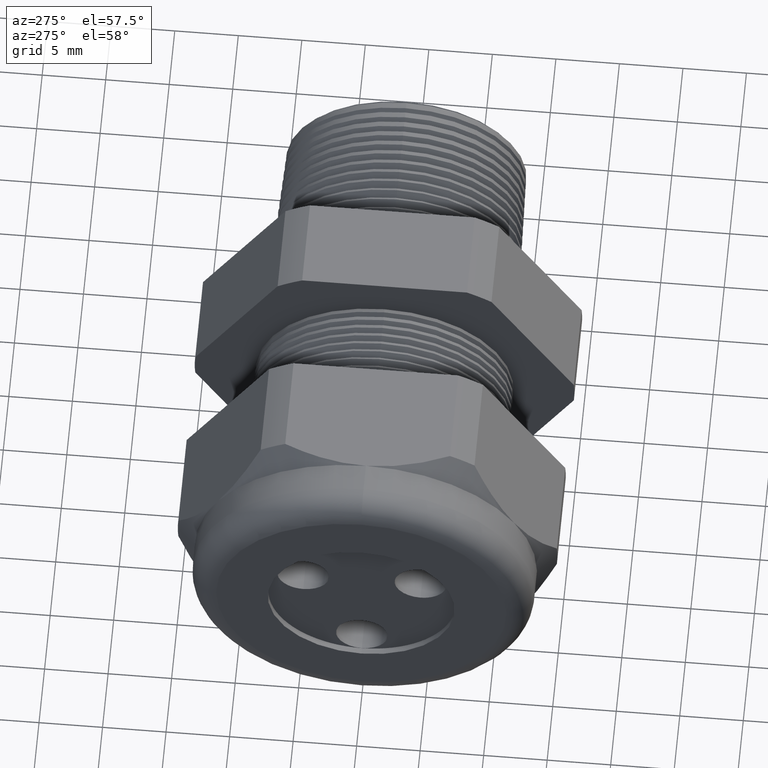
[diagram: clean part render]
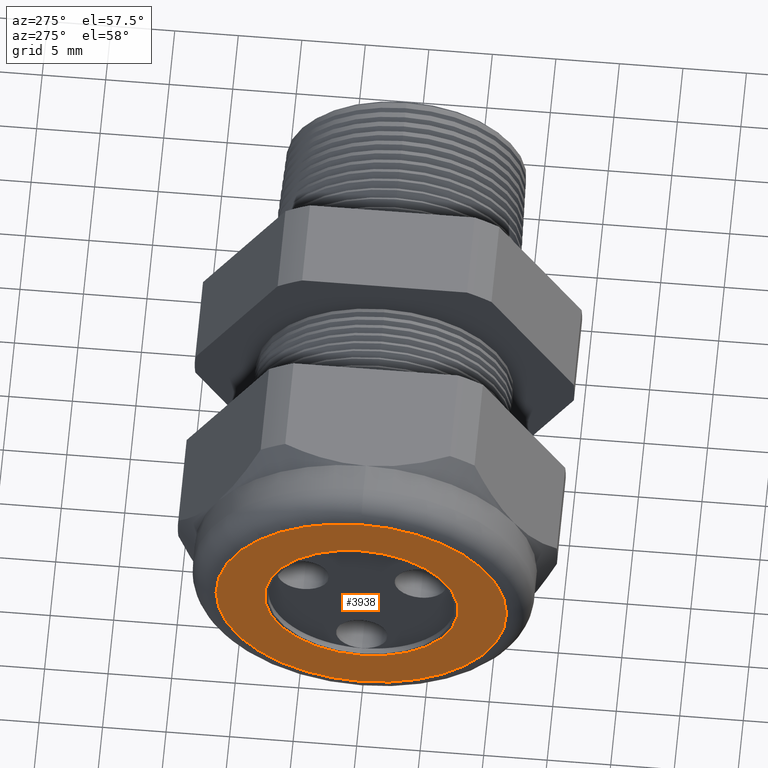
[diagram: same view with one face highlighted and labeled with its STEP entity id]
A machine part, auxiliary view. The second image highlights one B-rep face of the part: STEP entity #3938.
In plain terms, the highlighted planar face has unit normal (-1, 0, 0).
Its self-contained STEP definition (entity closure, byte-faithful):
#1921 = DIRECTION ( 'NONE',  ( 0.0000000000000000000, 0.0000000000000000000, -1.000000000000000000 ) ) ;
#1922 = DIRECTION ( 'NONE',  ( 1.000000000000000000, 0.0000000000000000000, 0.0000000000000000000 ) ) ;
#1923 = CARTESIAN_POINT ( 'NONE',  ( -1.409999999999999900, 0.0000000000000000000, 0.0000000000000000000 ) ) ;
#1924 = AXIS2_PLACEMENT_3D ( 'NONE', #1923, #1922, #1921 ) ;
#1925 = CIRCLE ( 'NONE', #1924, 0.2999999999999999900 ) ;
#1948 = DIRECTION ( 'NONE',  ( -1.000000000000000000, 0.0000000000000000000, 0.0000000000000000000 ) ) ;
#1949 = CARTESIAN_POINT ( 'NONE',  ( -1.409999999999999900, 0.0000000000000000000, 0.0000000000000000000 ) ) ;
#1950 = AXIS2_PLACEMENT_3D ( 'NONE', #1949, #1948, #2012 ) ;
#1951 = CIRCLE ( 'NONE', #1950, 0.4500000000000001200 ) ;
#1957 = DIRECTION ( 'NONE',  ( 0.0000000000000000000, 0.0000000000000000000, 1.000000000000000000 ) ) ;
#1958 = DIRECTION ( 'NONE',  ( -1.000000000000000000, 0.0000000000000000000, 0.0000000000000000000 ) ) ;
#1960 = CARTESIAN_POINT ( 'NONE',  ( -1.409999999999999900, 0.5300000000000000300, 0.0000000000000000000 ) ) ;
#1969 = AXIS2_PLACEMENT_3D ( 'NONE', #1960, #1958, #1957 ) ;
#1970 = PLANE ( 'NONE',  #1969 ) ;
#1972 = FACE_BOUND ( 'NONE', #3943, .T. ) ;
#1973 = FACE_OUTER_BOUND ( 'NONE', #3948, .T. ) ;
#2012 = DIRECTION ( 'NONE',  ( 0.0000000000000000000, 0.0000000000000000000, 1.000000000000000000 ) ) ;
#3010 = CARTESIAN_POINT ( 'NONE',  ( -1.409999999999999900, 6.000769315822032200E-017, -0.4500000000000001200 ) ) ;
#3089 = CARTESIAN_POINT ( 'NONE',  ( -1.409999999999999900, 0.0000000000000000000, -0.2999999999999999900 ) ) ;
#3090 = CARTESIAN_POINT ( 'NONE',  ( -1.409999999999999900, 3.673940397442058900E-017, 0.2999999999999999900 ) ) ;
#3091 = DIRECTION ( 'NONE',  ( 0.0000000000000000000, 0.0000000000000000000, -1.000000000000000000 ) ) ;
#3092 = DIRECTION ( 'NONE',  ( 1.000000000000000000, 0.0000000000000000000, 0.0000000000000000000 ) ) ;
#3093 = AXIS2_PLACEMENT_3D ( 'NONE', #3100, #3092, #3091 ) ;
#3094 = CIRCLE ( 'NONE', #3093, 0.2999999999999999900 ) ;
#3100 = CARTESIAN_POINT ( 'NONE',  ( -1.409999999999999900, 0.0000000000000000000, 0.0000000000000000000 ) ) ;
#3213 = AXIS2_PLACEMENT_3D ( 'NONE', #3279, #3278, #3277 ) ;
#3214 = CIRCLE ( 'NONE', #3213, 0.4500000000000001200 ) ;
#3275 = CARTESIAN_POINT ( 'NONE',  ( -1.409999999999999900, 0.0000000000000000000, 0.4500000000000001200 ) ) ;
#3277 = DIRECTION ( 'NONE',  ( 0.0000000000000000000, 0.0000000000000000000, 1.000000000000000000 ) ) ;
#3278 = DIRECTION ( 'NONE',  ( -1.000000000000000000, 0.0000000000000000000, 0.0000000000000000000 ) ) ;
#3279 = CARTESIAN_POINT ( 'NONE',  ( -1.409999999999999900, 0.0000000000000000000, 0.0000000000000000000 ) ) ;
#3921 = ORIENTED_EDGE ( 'NONE', *, *, #4543, .T. ) ;
#3923 = EDGE_CURVE ( 'NONE', #4545, #4544, #1925, .T. ) ;
#3931 = ORIENTED_EDGE ( 'NONE', *, *, #4617, .T. ) ;
#3938 = ADVANCED_FACE ( 'NONE', ( #1973, #1972 ), #1970, .T. ) ;
#3941 = EDGE_CURVE ( 'NONE', #4494, #4618, #1951, .T. ) ;
#3943 = EDGE_LOOP ( 'NONE', ( #3947, #3921 ) ) ;
#3946 = ORIENTED_EDGE ( 'NONE', *, *, #3941, .T. ) ;
#3947 = ORIENTED_EDGE ( 'NONE', *, *, #3923, .T. ) ;
#3948 = EDGE_LOOP ( 'NONE', ( #3931, #3946 ) ) ;
#4494 = VERTEX_POINT ( 'NONE', #3010 ) ;
#4543 = EDGE_CURVE ( 'NONE', #4544, #4545, #3094, .T. ) ;
#4544 = VERTEX_POINT ( 'NONE', #3090 ) ;
#4545 = VERTEX_POINT ( 'NONE', #3089 ) ;
#4617 = EDGE_CURVE ( 'NONE', #4618, #4494, #3214, .T. ) ;
#4618 = VERTEX_POINT ( 'NONE', #3275 ) ;